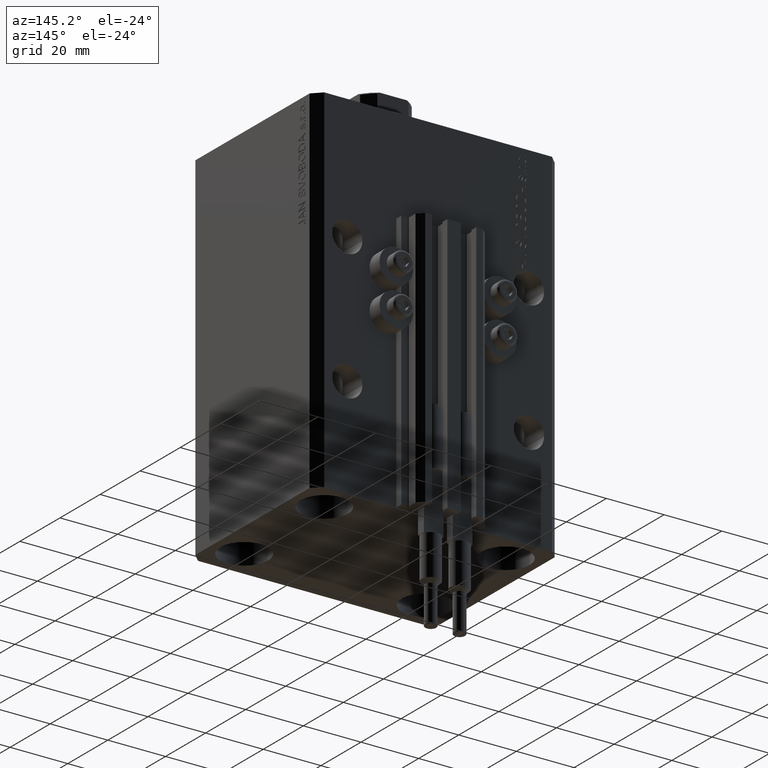
[diagram: clean part render]
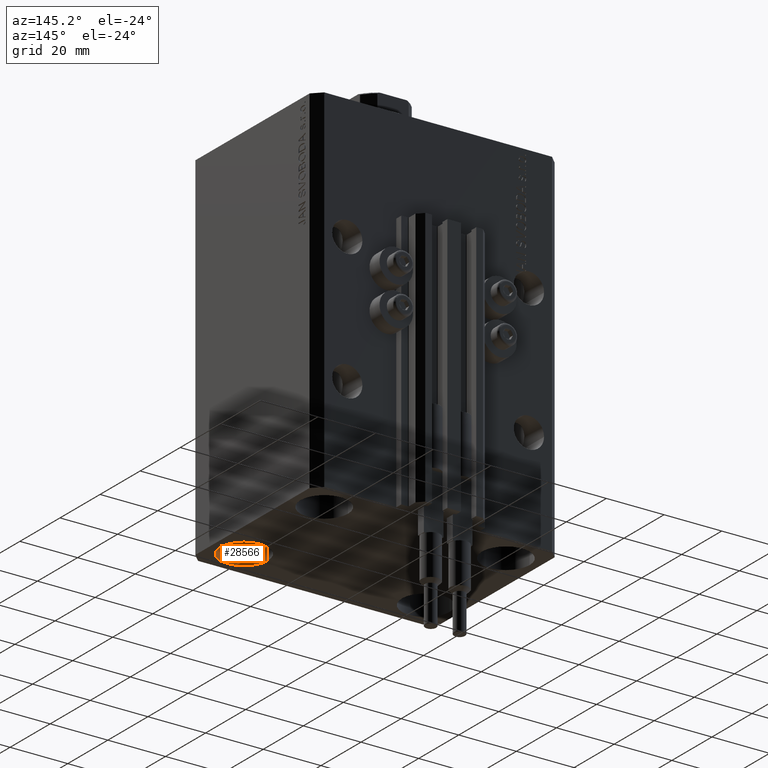
[diagram: same view with one face highlighted and labeled with its STEP entity id]
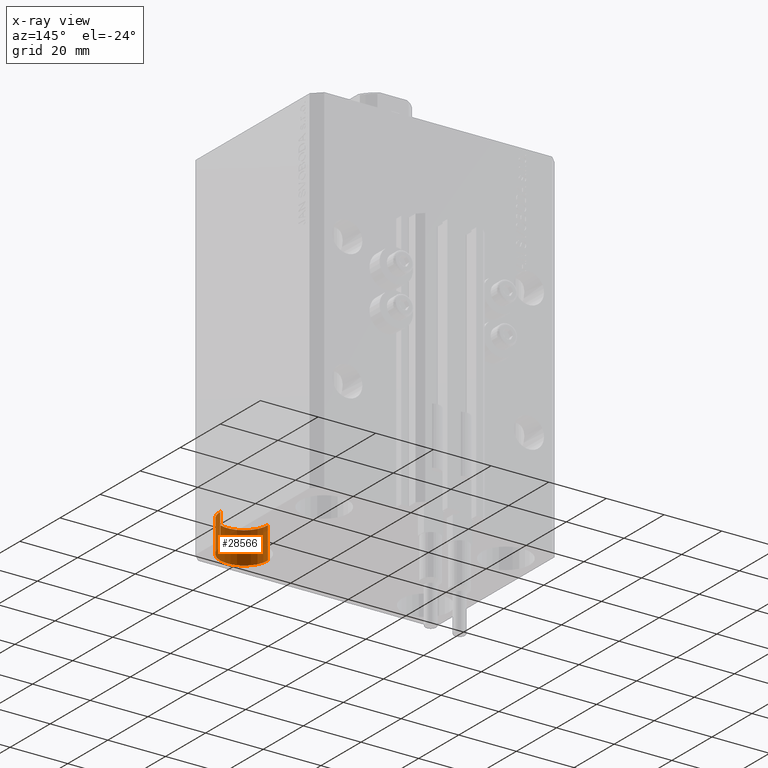
[diagram: x-ray of the same camera — body ghosted, the highlighted face saturated]
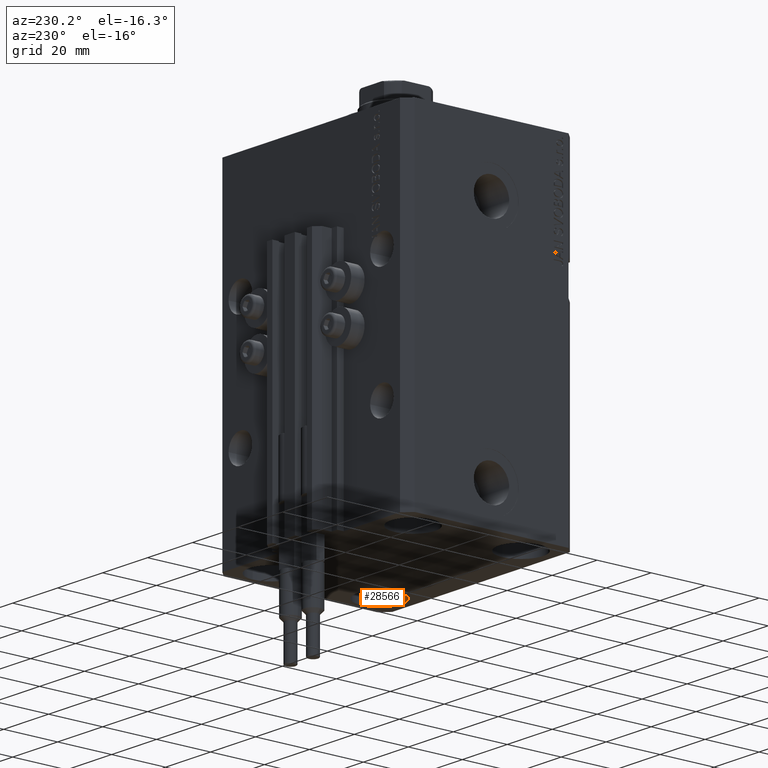
[diagram: same view with one face highlighted and labeled with its STEP entity id]
A machine part, auxiliary view. The second image highlights one B-rep face of the part: STEP entity #28566.
The next image is the same camera in x-ray: the body ghosted, the highlighted face saturated — about 11% of this face is hidden behind the body in this view.
A second angle (auxiliary view) of the same face is appended — the face is thin or edge-on in the first view.
In plain terms, the highlighted cylindrical surface (edge-blend (fillet) strip) has radius 8.25 mm, axis along (-0, -0, -1).
Its self-contained STEP definition (entity closure, byte-faithful):
#8 = DIRECTION ( 'NONE',  ( 1.000000000000000000, 0.000000000000000000, 0.000000000000000000 ) ) ;
#1505 = CARTESIAN_POINT ( 'NONE',  ( 23.25000000000000355, -20.00000000000000000, -112.0000000000000000 ) ) ;
#1969 = CARTESIAN_POINT ( 'NONE',  ( 39.74999999999999289, -20.00000000000000000, -123.0000000000000000 ) ) ;
#3102 = CARTESIAN_POINT ( 'NONE',  ( 39.74999999999999289, -20.00000000000000000, -112.0000000000000000 ) ) ;
#4586 = VERTEX_POINT ( 'NONE', #1505 ) ;
#5740 = VECTOR ( 'NONE', #7053, 1000.000000000000000 ) ;
#7053 = DIRECTION ( 'NONE',  ( -0.000000000000000000, -0.000000000000000000, -1.000000000000000000 ) ) ;
#7480 = AXIS2_PLACEMENT_3D ( 'NONE', #36689, #35956, #28771 ) ;
#8043 = DIRECTION ( 'NONE',  ( -0.000000000000000000, -0.000000000000000000, -1.000000000000000000 ) ) ;
#9292 = CIRCLE ( 'NONE', #31399, 8.249999999999992895 ) ;
#9931 = VERTEX_POINT ( 'NONE', #1969 ) ;
#15529 = CARTESIAN_POINT ( 'NONE',  ( 39.74999999999999289, -20.00000000000000000, -112.0000000000000000 ) ) ;
#16170 = CARTESIAN_POINT ( 'NONE',  ( 31.50000000000000000, -20.00000000000000000, -112.0000000000000000 ) ) ;
#18454 = ORIENTED_EDGE ( 'NONE', *, *, #39917, .F. ) ;
#20566 = VERTEX_POINT ( 'NONE', #29060 ) ;
#24609 = EDGE_CURVE ( 'NONE', #25593, #9931, #48624, .T. ) ;
#24728 = ORIENTED_EDGE ( 'NONE', *, *, #28522, .T. ) ;
#25297 = FACE_OUTER_BOUND ( 'NONE', #33034, .T. ) ;
#25593 = VERTEX_POINT ( 'NONE', #15529 ) ;
#26852 = CARTESIAN_POINT ( 'NONE',  ( 23.25000000000000355, -20.00000000000000000, -112.0000000000000000 ) ) ;
#27067 = DIRECTION ( 'NONE',  ( -0.000000000000000000, -0.000000000000000000, 1.000000000000000000 ) ) ;
#28522 = EDGE_CURVE ( 'NONE', #4586, #25593, #28795, .T. ) ;
#28566 = ADVANCED_FACE ( 'NONE', ( #25297 ), #44353, .F. ) ;
#28771 = DIRECTION ( 'NONE',  ( -1.000000000000000000, 0.000000000000000000, 0.000000000000000000 ) ) ;
#28795 = CIRCLE ( 'NONE', #39036, 8.249999999999992895 ) ;
#29060 = CARTESIAN_POINT ( 'NONE',  ( 23.25000000000000355, -20.00000000000000000, -123.0000000000000000 ) ) ;
#29910 = ORIENTED_EDGE ( 'NONE', *, *, #24609, .T. ) ;
#31399 = AXIS2_PLACEMENT_3D ( 'NONE', #45754, #41809, #8 ) ;
#33034 = EDGE_LOOP ( 'NONE', ( #24728, #29910, #18454, #43648 ) ) ;
#34724 = DIRECTION ( 'NONE',  ( 1.000000000000000000, 0.000000000000000000, 0.000000000000000000 ) ) ;
#35956 = DIRECTION ( 'NONE',  ( -0.000000000000000000, -0.000000000000000000, -1.000000000000000000 ) ) ;
#36689 = CARTESIAN_POINT ( 'NONE',  ( 31.50000000000000000, -20.00000000000000000, -112.0000000000000000 ) ) ;
#38234 = LINE ( 'NONE', #26852, #47338 ) ;
#39036 = AXIS2_PLACEMENT_3D ( 'NONE', #16170, #27067, #34724 ) ;
#39917 = EDGE_CURVE ( 'NONE', #20566, #9931, #9292, .T. ) ;
#41809 = DIRECTION ( 'NONE',  ( -0.000000000000000000, -0.000000000000000000, 1.000000000000000000 ) ) ;
#42611 = EDGE_CURVE ( 'NONE', #4586, #20566, #38234, .T. ) ;
#43648 = ORIENTED_EDGE ( 'NONE', *, *, #42611, .F. ) ;
#44353 = CYLINDRICAL_SURFACE ( 'NONE', #7480, 8.249999999999996447 ) ;
#45754 = CARTESIAN_POINT ( 'NONE',  ( 31.50000000000000000, -20.00000000000000000, -123.0000000000000000 ) ) ;
#47338 = VECTOR ( 'NONE', #8043, 1000.000000000000000 ) ;
#48624 = LINE ( 'NONE', #3102, #5740 ) ;